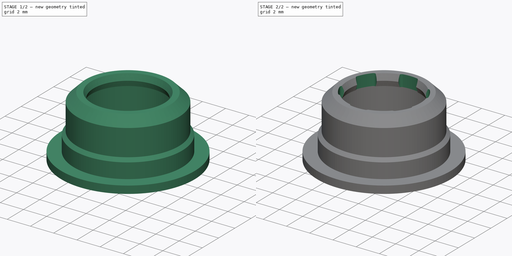
[diagram: build sequence overview — one tinted view per stage of 2, left to right]
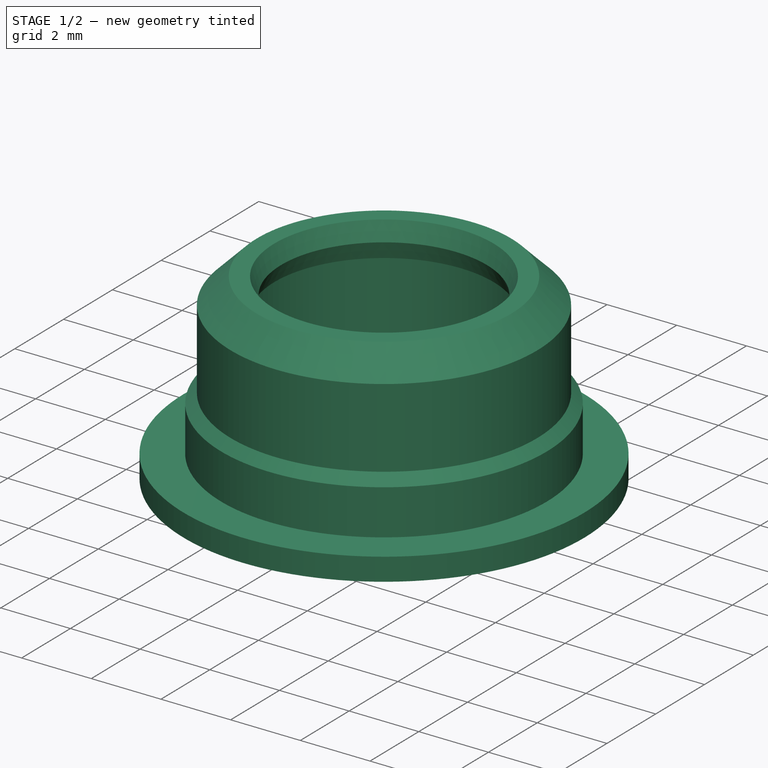
[diagram: stage 1 of 2 — iso view after this stage's code; geometry added in this stage tinted green]
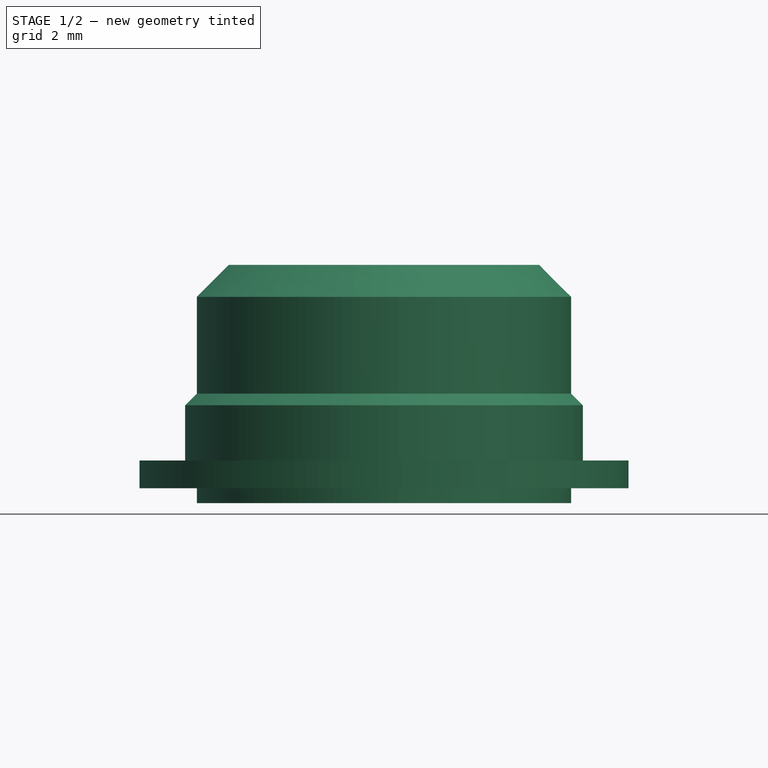
[diagram: stage 1 of 2 — front view after this stage's code; geometry added in this stage tinted green]
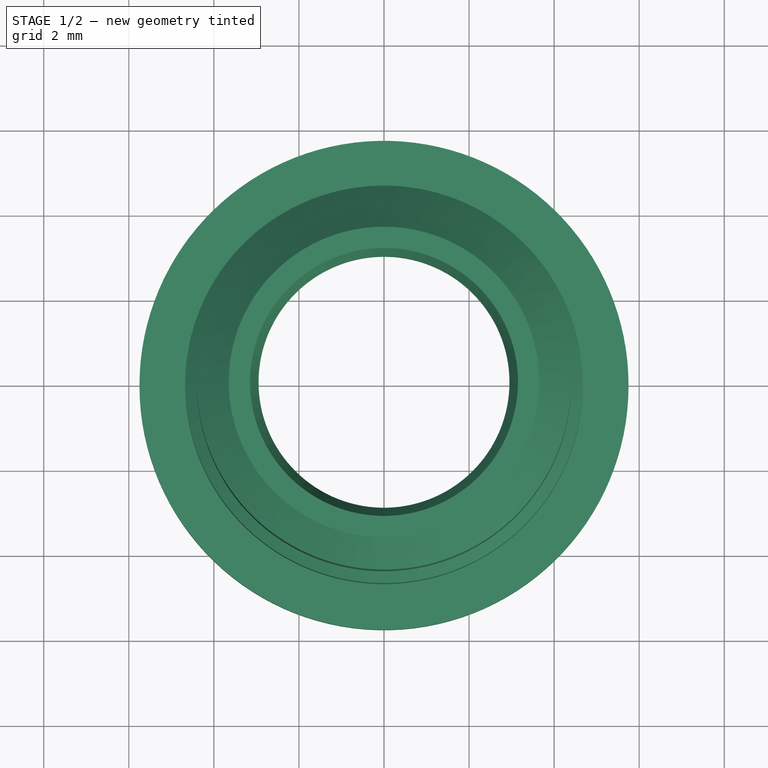
[diagram: stage 1 of 2 — top view after this stage's code; geometry added in this stage tinted green]
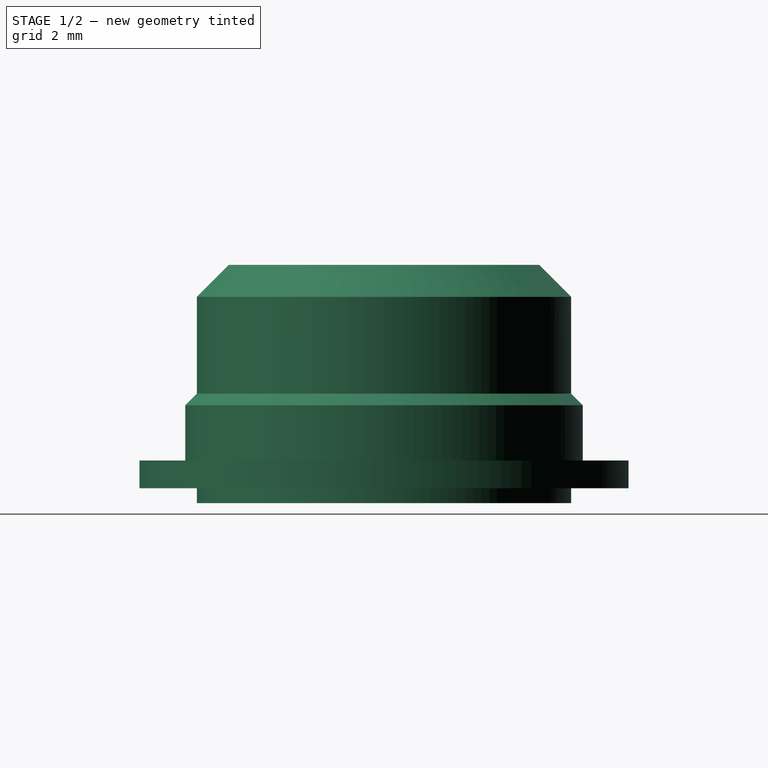
[diagram: stage 1 of 2 — right view after this stage's code; geometry added in this stage tinted green]
FCSTD DOCUMENT  (FreeCAD 0.21R33668 +26 (Git))
Label: PLASTIC-BUSHING-POT_2_deg_edges
License: All rights reserved
LicenseURL: http://en.wikipedia.org/wiki/All_rights_reserved
objects: TechDraw::DrawViewDimension×23, Sketcher::SketchObject×3, PartDesign::Body×2, TechDraw::DrawViewPart×2, PartDesign::Revolution×1, TechDraw::DrawSVGTemplate×1, PartDesign::FeatureBase×1, PartDesign::Pocket×1, PartDesign::PolarPattern×1, TechDraw::DrawComplexSection×1, TechDraw::DrawViewAnnotation×1, TechDraw::DrawViewImage×1, TechDraw::DrawPage×1
note: 52 computed .brp shape members not serialized (recipe doc carries the construction recipe); baked Part::Feature solids carry a one-line shape summary decoded from their .brp

FEATURE [Sketcher::SketchObject] Sketch
  FullyConstrained = true
  MapMode = 5
  Placement = pos=(0,0,0) rot=(1,0,0;1.5708rad)
  Support = -> [XZ_Plane]
  sketch-geometry (20):
    g0: LineSegment StartX=-3.6 StartY=4.6 StartZ=0 EndX=-3.6 EndY=3.5 EndZ=0
    g1: LineSegment StartX=-3.6 StartY=4.6 StartZ=0 EndX=-3.15 EndY=4.6 EndZ=0
    g2: LineSegment StartX=-5.75 StartY=1 StartZ=0 EndX=-4.675 EndY=1 EndZ=0
    g3: LineSegment StartX=-3.15 StartY=5.6 StartZ=0 EndX=-3.65 EndY=5.6 EndZ=0
    g4: LineSegment StartX=-3.65 StartY=5.6 StartZ=0 EndX=-4.4 EndY=4.85 EndZ=0
    g5: LineSegment StartX=-3.825 StartY=0 StartZ=0 EndX=-4.4 EndY=0 EndZ=0
    g6: LineSegment StartX=-5.75 StartY=0.35 StartZ=0 EndX=-4.4 EndY=0.35 EndZ=0
    g7: LineSegment StartX=-4.4 StartY=0 StartZ=0 EndX=-4.4 EndY=0.35 EndZ=0
    g8: LineSegment StartX=-5.75 StartY=1 StartZ=0 EndX=-5.75 EndY=0.35 EndZ=0
    g9: LineSegment StartX=-4.675 StartY=1 StartZ=0 EndX=-4.675 EndY=2.3 EndZ=0
    g10: LineSegment StartX=-4.4 StartY=2.575 StartZ=0 EndX=-4.4 EndY=4.85 EndZ=0
    g11: LineSegment StartX=-3.15 StartY=5.6 StartZ=0 EndX=-2.95 EndY=5.1 EndZ=0
    g12: LineSegment StartX=-2.95 StartY=5.1 StartZ=0 EndX=-3.15 EndY=4.6 EndZ=0
    g13: LineSegment StartX=-3.825 StartY=0 StartZ=0 EndX=-3.325 EndY=0.5 EndZ=0
    g14: LineSegment StartX=-3.325 StartY=0.5 StartZ=0 EndX=-3.6 EndY=1 EndZ=0
    g15: LineSegment StartX=-3.6 StartY=3.5 StartZ=0 EndX=-3.3 EndY=3 EndZ=0
    g16: LineSegment StartX=-3.3 StartY=3 StartZ=0 EndX=-3.6 EndY=2.5 EndZ=0
    g17: LineSegment StartX=-3.6 StartY=2.5 StartZ=0 EndX=-3.6 EndY=1 EndZ=0
    g18: LineSegment StartX=-4.675 StartY=2.3 StartZ=0 EndX=-4.4 EndY=2.575 EndZ=0
    g19: LineSegment StartX=-3.6 StartY=3.5 StartZ=0 EndX=-3.6 EndY=2.5 EndZ=0
  constraints (64):
    c: DistanceY(g5,g0) = 4.6
    c: Coincident(g1,g0)
    c: Horizontal(g1)
    c: DistanceY(g1,g3) = 1
    c: Horizontal(g2)
    c: Coincident(g9,g2)
    c: Horizontal(g3)
    c: Coincident(g4,g3)
    c: Coincident(g4,g10)
    c: PointOnObject(g5,g-1)
    c: DistanceX(g2,g-1) = 4.675
    c: Horizontal(g5)
    c: Horizontal(g6)
    c: Coincident(g7,g5)
    c: Coincident(g7,g6)
    c: Vertical(g7)
    c: DistanceX(g2,g-1) = 5.75
    c: Coincident(g8,g2)
    c: Coincident(g8,g6)
    c: Vertical(g8)
    c: DistanceY(g7,g7) = 0.35
    c: DistanceY(g5,g2) = 1
    c: DistanceX(g5,g-1) = 4.4
    c: Angle(g4,g3) = 2.35619
    c: DistanceX(g0,g-1) = 3.6
    c: Vertical(g9)
    c: Vertical(g10)
    c: DistanceY(g9,g9) = 1.3
    c: DistanceX(g4,g3) = 0.75
    c: DistanceY(g5,g3) = 5.6
    c: Coincident(g12,g1)
    c: DistanceX(g3,g3) = 0.5
    c: Coincident(g11,g3)
    c: Coincident(g12,g11)
    c: Equal(g11,g12)
    c: DistanceX(g11,g-1) = 2.95
    c: Vertical(g1,g3)
    c: Vertical(g0)
    c: Coincident(g13,g5)
    c: Coincident(g17,g14)
    c: DistanceX(g13,g-1) = 3.325
    c: Coincident(g14,g13)
    c: DistanceY(g5,g17) = 1
    c: Angle(g-1,g13) = 0.785398
    c: DistanceY(g5,g13) = 0.5
    c: Equal(g15,g16)
    c: Coincident(g15,g16)
    c: DistanceX(g15,g-1) = 3.3
    c: DistanceY(g16,g15) = 1
    c: DistanceY(g-1,g15) = 3
    c: Coincident(g0,g15)
    c: Coincident(g17,g16)
    c: Vertical(g0,g16)
    c: Vertical(g17)
    c: DistanceY(g0,g0) = 1.1
    c: DistanceY(g8,g8) = 0.65
    c: DistanceX(g4,g0) = 0.8
    c: Coincident(g18,g9)
    c: Coincident(g10,g18)
    c: Angle(g9,g18) = 2.35619
    c: DistanceX(g10,g-1) = 4.4
    c: DistanceY(g9,g10) = 0.275
    c: Coincident(g19,g0)
    c: Coincident(g19,g16)
FEATURE [PartDesign::Revolution] Revolution
  Angle = 360
  Axis = (0,-2e-16,1)
  Base = (0,0,0)
  Placement = pos=(0,0,0) rot=(1,0,0;1.5708rad)
  Profile = -> Sketch
  ReferenceAxis = -> Sketch [V_Axis]
FEATURE [Sketcher::SketchObject] Sketch001
  FullyConstrained = true
  MapMode = 5
  Support = -> [XY_Plane001]
  sketch-geometry (7):
    g0: LineSegment StartX=1e-16 StartY=0 StartZ=0 EndX=-0.776457 EndY=2.89778 EndZ=0
    g1: LineSegment StartX=0.776457 StartY=2.89778 StartZ=0 EndX=0 EndY=0 EndZ=0
    g2: ArcOfCircle CenterX=1e-16 CenterY=0 CenterZ=0 NormalX=0 NormalY=0 NormalZ=1 AngleXU=0 Radius=3.25 StartAngle=1.38895 EndAngle=1.75264
    g3: ArcOfCircle CenterX=-0.544263 CenterY=2.95999 CenterZ=0 NormalX=0 NormalY=0 NormalZ=1 AngleXU=0 Radius=0.240385 StartAngle=1.75264 EndAngle=3.40339
    g4: ArcOfCircle CenterX=0.544263 CenterY=2.95999 CenterZ=0 NormalX=0 NormalY=0 NormalZ=1 AngleXU=0 Radius=0.240385 StartAngle=6.02139 EndAngle=7.67214
    g5: LineSegment StartX=-0.776457 StartY=2.89778 StartZ=0 EndX=0.776457 EndY=2.89778 EndZ=0
    g6: LineSegment StartX=-0.587735 StartY=3.19641 StartZ=0 EndX=0.587735 EndY=3.19641 EndZ=0
  constraints (16):
    c: Coincident(g-1,g0)
    c: Coincident(g1,g0)
    c: Coincident(g2,g0)
    c: Tangent(g0,g3) = 1.5708
    c: Tangent(g2,g3) = -1.5708
    c: Tangent(g2,g4) = -1.5708
    c: Tangent(g1,g4) = 1.5708
    c: Coincident(g5,g0)
    c: Coincident(g5,g1)
    c: Horizontal(g5)
    c: Coincident(g6,g2)
    c: Coincident(g6,g2)
    c: Horizontal(g6)
    c: Diameter(g2) = 6.5
    c: Angle(g1,g0) = 0.523599
    c: Distance(g0) = 3
FEATURE [TechDraw::DrawSVGTemplate] Template
  EditableTexts = COLOR=Black; CreationDate=2024/02/16; E.G.APPROVED=APPROVED; FC-Scale=10:1; FC-Title=PLASTIC - BUSHING - POT; IntechStudioLtd.=Intech Studio Ltd.; MATERIAL=POM; REV=03; STANDARD=+/- 0,1
  Height = 297
  Orientation = 1
  Template = <userpath>/Documents/grid-hardware/Manufacturing/FreeCAD_technical_drawing_template/A3_LandscapeTD_MODIFIED.svg
  Width = 420
FEATURE [Sketcher::SketchObject] Sketch002
  FullyConstrained = true
  MapMode = 5
  Placement = pos=(0,0,0) rot=(1,0,0;1.5708rad)
  Support = -> [XZ_Plane]
  sketch-geometry (1):
    g0: LineSegment StartX=0 StartY=-1 StartZ=0 EndX=0 EndY=6 EndZ=0
  constraints (4):
    c: PointOnObject(g0,g-2)
    c: PointOnObject(g0,g-2)
    c: DistanceY(g0,g0) = 7
    c: DistanceY(g0,g-1) = 1
FEATURE [PartDesign::Body] Body  label="PLASTIC-BUSHING-POT"
  Group = -> [Sketch,Revolution,Sketch002]
  Origin = -> Origin
  Tip = -> Revolution
FEATURE [PartDesign::FeatureBase] Clone
  BaseFeature = -> Body
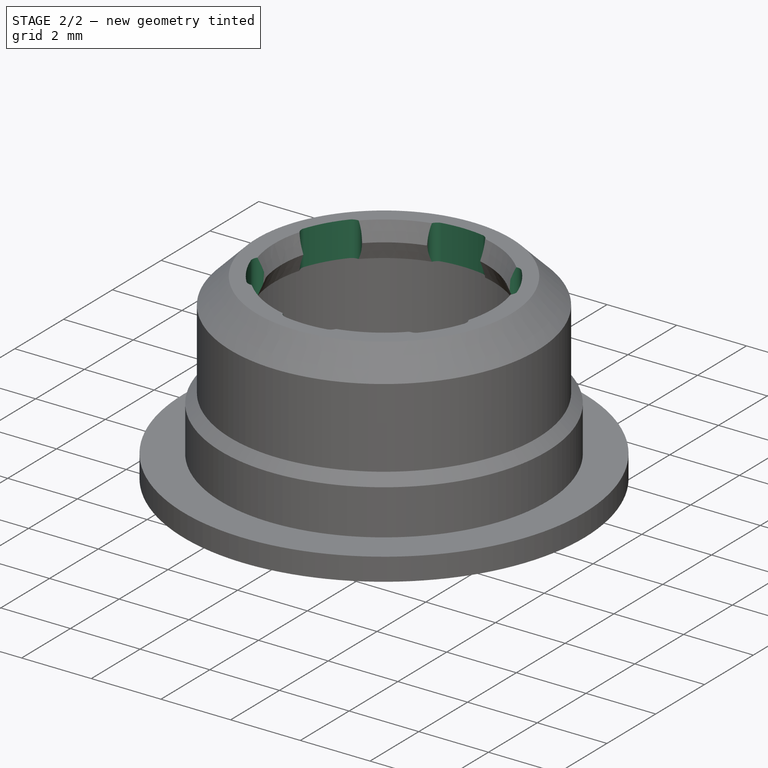
[diagram: stage 2 of 2 — iso view after this stage's code; geometry added in this stage tinted green]
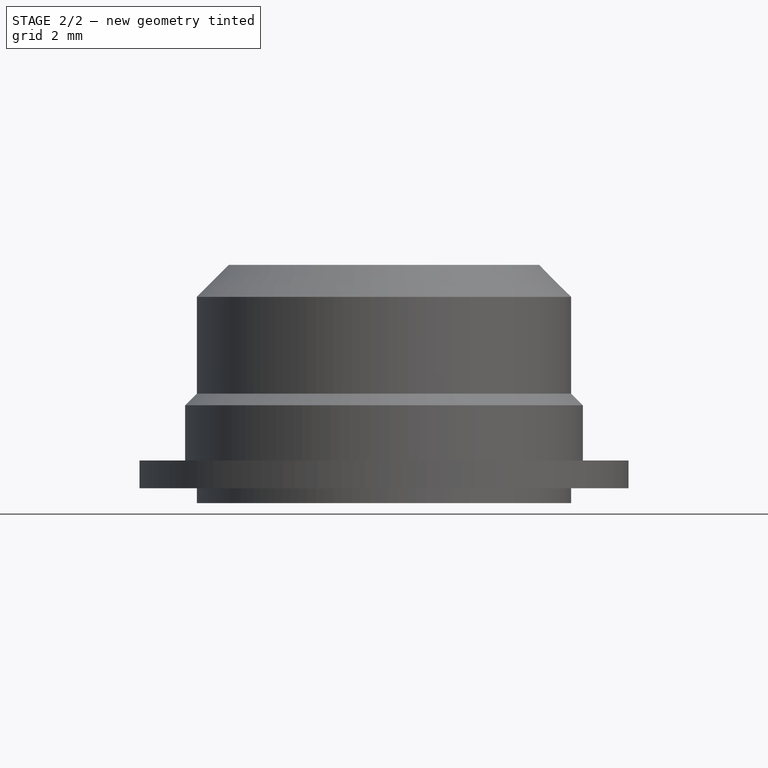
[diagram: stage 2 of 2 — front view after this stage's code; geometry added in this stage tinted green]
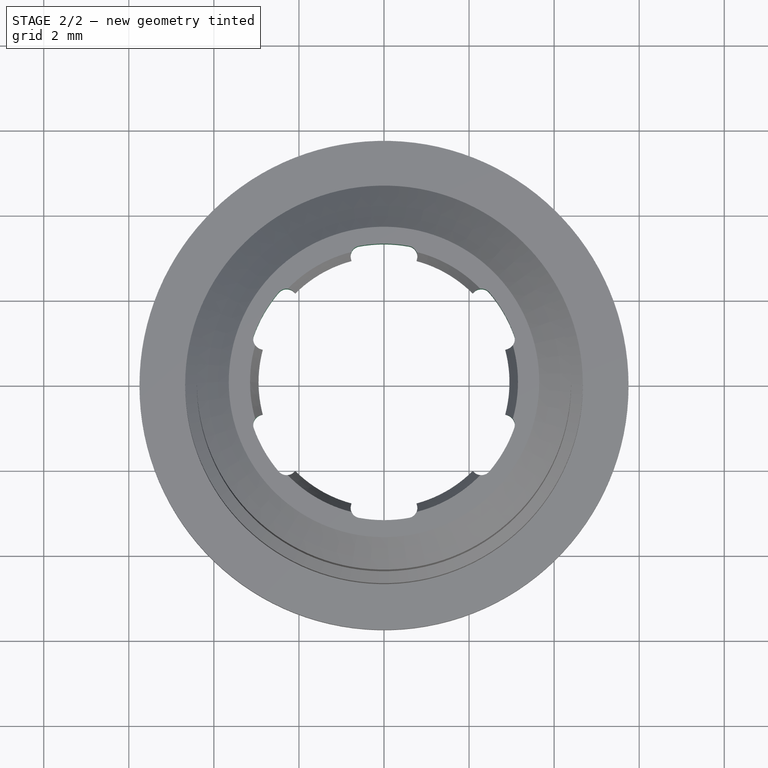
[diagram: stage 2 of 2 — top view after this stage's code; geometry added in this stage tinted green]
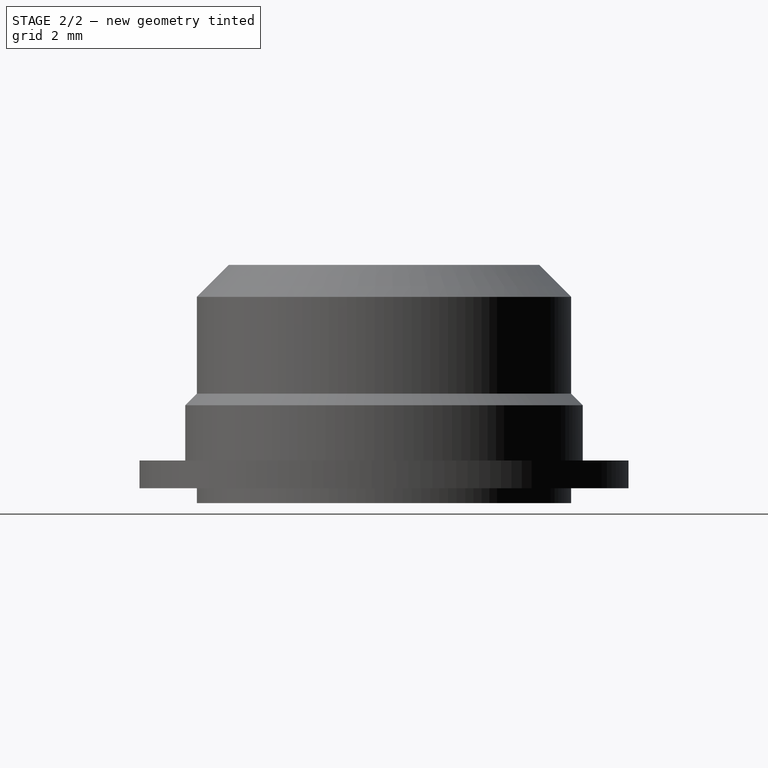
[diagram: stage 2 of 2 — right view after this stage's code; geometry added in this stage tinted green]
FEATURE [PartDesign::Pocket] Pocket
  BaseFeature = -> Clone
  Direction = (0,0,-1)
  Length = 5
  Length2 = 5
  Midplane = true
  Profile = -> Sketch001
  ReferenceAxis = -> Sketch001 [N_Axis]
  Type = 1
FEATURE [PartDesign::PolarPattern] PolarPattern
  Angle = 360
  Axis = -> Sketch001 [N_Axis]
  BaseFeature = -> Pocket
  Occurrences = 6
  Originals = -> [Pocket]
FEATURE [PartDesign::Body] Body001  label="PLASTIC-BUSHING-POT_Printed"
  BaseFeature = -> Body
  Group = -> [Clone,Sketch001,Pocket,PolarPattern]
  Origin = -> Origin001
  Tip = -> PolarPattern
FEATURE [TechDraw::DrawViewPart] View
  CoarseView = false
  Direction = (0,-1,0)
  Focus = 100
  HardHidden = false
  IsoCount = 0
  IsoHidden = false
  IsoVisible = true
  LockPosition = false
  Perspective = false
  Rotation = 0
  Scale = 10
  ScaleType = 2
  ScrubCount = 0
  SeamHidden = false
  SeamVisible = true
  SmoothHidden = false
  SmoothVisible = true
  Source = -> [Body]
  X = 104.919
  XDirection = (1,0,1e-06)
  Y = 220.471
FEATURE [TechDraw::DrawComplexSection] ComplexSection  label="Section A - A"
  BaseView = -> View
  CoarseView = false
  CutSurfaceDisplay = 2
  CuttingToolWireObject = -> Sketch002
  Direction = (-1,0,-1e-06)
  FileGeomPattern = C:/Program Files/FreeCAD 0.21/data/Mod/TechDraw/PAT/FCPAT.pat
  FileHatchPattern = C:/Program Files/FreeCAD 0.21/data/Mod/TechDraw/Patterns/simple.svg
  Focus = 100
  FuseBeforeCut = false
  HardHidden = false
  HatchOffset = (0,0,0)
  HatchRotation = 0
  HatchScale = 1
  IsoCount = 0
  IsoHidden = false
  IsoVisible = true
  LockPosition = false
  NameGeomPattern = Gyémánt bevonatú
  Perspective = false
  ProjectionStrategy = 0
  Rotation = -90
  Scale = 10
  ScaleType = 2
  ScrubCount = 0
  SeamHidden = false
  SeamVisible = true
  SectionDirection = 4
  SectionNormal = (-1,0,-1e-06)
  SectionOrigin = (0,0,0)
  SectionSymbol = A
  SmoothHidden = false
  SmoothVisible = true
  Source = -> [Body]
  TrimAfterCut = false
  X = 281.503
  XDirection = (1e-06,0,-1)
  Y = 217.69
FEATURE [TechDraw::DrawViewPart] View001
  CoarseView = false
  Direction = (-1e-06,0,1)
  Focus = 100
  HardHidden = false
  IsoCount = 0
  IsoHidden = false
  IsoVisible = true
  LockPosition = false
  Perspective = false
  Rotation = 0
  Scale = 10
  ScaleType = 2
  ScrubCount = 0
  SeamHidden = false
  SeamVisible = true
  SmoothHidden = false
  SmoothVisible = true
  Source = -> [Body]
  X = 106.159
  XDirection = (1,0,1e-06)
  Y = 97.3006
FEATURE [TechDraw::DrawViewDimension] Dimension002
  AngleOverride = false
  Arbitrary = false
  ArbitraryTolerances = false
  EqualTolerance = true
  ExtensionAngle = 0
  FormatSpec = ⌀%.2w
  FormatSpecOverTolerance = %+.2w
  FormatSpecUnderTolerance = %+.2w
  Inverted = false
  LineAngle = 0
  LockPosition = false
  MeasureType = 1
  OverTolerance = 0
  References2D = -> [View001]
  Rotation = 0
  ScaleType = 0
  TheoreticalExact = false
  Type = 5
  UnderTolerance = 0
  X = 73.3272
  Y = 38.6561
FEATURE [TechDraw::DrawViewDimension] Dimension006
  AngleOverride = false
  Arbitrary = false
  ArbitraryTolerances = false
  EqualTolerance = true
  ExtensionAngle = 0
  FormatSpec = ⌀%.2w
  FormatSpecOverTolerance = %+.2w
  FormatSpecUnderTolerance = %+.2w
  Inverted = false
  LineAngle = 0
  LockPosition = false
  MeasureType = 1
  OverTolerance = 0
  References2D = -> [View]
  Rotation = 0
  ScaleType = 0
  TheoreticalExact = false
  Type = 0
  UnderTolerance = 0
  X = -0.516568
  Y = -42.4063
FEATURE [TechDraw::DrawViewDimension] Dimension007
  AngleOverride = false
  Arbitrary = false
  ArbitraryTolerances = false
  EqualTolerance = true
  ExtensionAngle = 0
  FormatSpec = %.2w×45°
  FormatSpecOverTolerance = %+.2w
  FormatSpecUnderTolerance = %+.2w
  Inverted = false
  LineAngle = 0
  LockPosition = false
  MeasureType = 1
  OverTolerance = 0
  References2D = -> [ComplexSection]
  Rotation = 0
  ScaleType = 0
  TheoreticalExact = false
  Type = 2
  UnderTolerance = 0
  X = 64.4303
  Y = 6.24021
FEATURE [TechDraw::DrawViewDimension] Dimension016
  AngleOverride = false
  Arbitrary = false
  ArbitraryTolerances = false
  EqualTolerance = true
  ExtensionAngle = 0
  FormatSpec = ⌀%.2w
  FormatSpecOverTolerance = %+.2w
  FormatSpecUnderTolerance = %+.2w
  Inverted = false
  LineAngle = 0
  LockPosition = false
  MeasureType = 1
  OverTolerance = 0
  References2D = -> [View001]
  Rotation = 0
  ScaleType = 0
  TheoreticalExact = false
  Type = 5
  UnderTolerance = 0
  X = 78.5171
  Y = 25.4885
FEATURE [TechDraw::DrawViewAnnotation] Annotation
  Font = osifont
  LineSpace = 100
  LockPosition = false
  MaxWidth = -1
  Rotation = 0
  ScaleType = 0
  Text = Section A-A
  TextSize = 4
  TextStyle = 0
  X = 282.253
  Y = 148.402
FEATURE [TechDraw::DrawViewDimension] Dimension020
  AngleOverride = false
  Arbitrary = false
  ArbitraryTolerances = false
  EqualTolerance = true
  ExtensionAngle = 0
  FormatSpec = ⌀%.2w
  FormatSpecOverTolerance = %+.2w
  FormatSpecUnderTolerance = %+.2w
  Inverted = false
  LineAngle = 0
  LockPosition = false
  MeasureType = 1
  OverTolerance = 0
  References2D = -> [ComplexSection]
  Rotation = 0
  ScaleType = 0
  TheoreticalExact = false
  Type = 1
  UnderTolerance = 0
  X = -1.31606
  Y = 49.7679
FEATURE [TechDraw::DrawViewDimension] Dimension021
  AngleOverride = false
  Arbitrary = false
  ArbitraryTolerances = false
  EqualTolerance = true
  ExtensionAngle = 0
  FormatSpec = ⌀%.2w
  FormatSpecOverTolerance = %+.2w
  FormatSpecUnderTolerance = %+.2w
  Inverted = false
  LineAngle = 0
  LockPosition = false
  MeasureType = 1
  OverTolerance = 0
  References2D = -> [ComplexSection]
  Rotation = 0
  ScaleType = 0
  TheoreticalExact = false
  Type = 1
  UnderTolerance = 0
  X = -0.276432
  Y = -56.4229
FEATURE [TechDraw::DrawViewDimension] Dimension023
  AngleOverride = false
  Arbitrary = false
  ArbitraryTolerances = false
  EqualTolerance = true
  ExtensionAngle = 0
  FormatSpec = %.2w×45°
  FormatSpecOverTolerance = %+.2w
  FormatSpecUnderTolerance = %+.2w
  Inverted = false
  LineAngle = 0
  LockPosition = false
  MeasureType = 1
  OverTolerance = 0
  References2D = -> [ComplexSection]
  Rotation = 0
  ScaleType = 0
  TheoreticalExact = false
  Type = 2
  UnderTolerance = 0
  X = 65.124
  Y = -37.7849
FEATURE [TechDraw::DrawViewDimension] Dimension026
  AngleOverride = false
  Arbitrary = false
  ArbitraryTolerances = false
  EqualTolerance = true
  ExtensionAngle = 0
  FormatSpec = ⌀%.2w
  FormatSpecOverTolerance = %+.2w
  FormatSpecUnderTolerance = %+.2w
  Inverted = false
  LineAngle = 0
  LockPosition = false
  MeasureType = 1
  OverTolerance = 0
  References2D = -> [ComplexSection]
  Rotation = 0
  ScaleType = 0
  TheoreticalExact = false
  Type = 1
  UnderTolerance = 0
  X = -0.581342
  Y = -42.3351
FEATURE [TechDraw::DrawViewDimension] Dimension027
  AngleOverride = false
  Arbitrary = false
  ArbitraryTolerances = false
  EqualTolerance = true
  ExtensionAngle = 0
  FormatSpec = ⌀%.2w
  FormatSpecOverTolerance = %+.2w
  FormatSpecUnderTolerance = %+.2w
  Inverted = false
  LineAngle = 0
  LockPosition = false
  MeasureType = 1
  OverTolerance = 0
  References2D = -> [ComplexSection]
  Rotation = 0
  ScaleType = 0
  TheoreticalExact = false
  Type = 1
  UnderTolerance = 0
  X = -1.21128
  Y = 56.956
FEATURE [TechDraw::DrawViewDimension] Dimension028
  AngleOverride = false
  Arbitrary = false
  ArbitraryTolerances = false
  EqualTolerance = true
  ExtensionAngle = 0
  FormatSpec = ⌀%.2w
  FormatSpecOverTolerance = %+.2w
  FormatSpecUnderTolerance = %+.2w
  Inverted = false
  LineAngle = 0
  LockPosition = false
  MeasureType = 1
  OverTolerance = 0
  References2D = -> [ComplexSection]
  Rotation = 0
  ScaleType = 0
  TheoreticalExact = false
  Type = 1
  UnderTolerance = 0
  X = -1.43633
  Y = 42.1012
FEATURE [TechDraw::DrawViewDimension] Dimension029
  AngleOverride = false
  Arbitrary = false
  ArbitraryTolerances = false
  EqualTolerance = true
  ExtensionAngle = 0
  FormatSpec = %.2w
  FormatSpecOverTolerance = %+.2w
  FormatSpecUnderTolerance = %+.2w
  Inverted = false
  LineAngle = 0
  LockPosition = false
  MeasureType = 1
  OverTolerance = 0
  References2D = -> [ComplexSection]
  Rotation = 0
  ScaleType = 0
  TheoreticalExact = false
  Type = 2
  UnderTolerance = 0
  X = -77.3726
  Y = -3.98069
FEATURE [TechDraw::DrawViewDimension] Dimension030
  AngleOverride = false
  Arbitrary = false
  ArbitraryTolerances = false
  EqualTolerance = true
  ExtensionAngle = 0
  FormatSpec = %.2w
  FormatSpecOverTolerance = %+.2w
  FormatSpecUnderTolerance = %+.2w
  Inverted = false
  LineAngle = 0
  LockPosition = false
  MeasureType = 1
  OverTolerance = 0
  References2D = -> [ComplexSection]
  Rotation = 0
  ScaleType = 0
  TheoreticalExact = false
  Type = 2
  UnderTolerance = 0
  X = -68.74
  Y = -11.4007
FEATURE [TechDraw::DrawViewDimension] Dimension031
  AngleOverride = false
  Arbitrary = false
  ArbitraryTolerances = false
  EqualTolerance = true
  ExtensionAngle = 0
  FormatSpec = %.2w
  FormatSpecOverTolerance = %+.2w
  FormatSpecUnderTolerance = %+.2w
  Inverted = false
  LineAngle = 0
  LockPosition = false
  MeasureType = 1
  OverTolerance = 0
  References2D = -> [ComplexSection]
  Rotation = 0
  ScaleType = 0
  TheoreticalExact = false
  Type = 2
  UnderTolerance = 0
  X = 25.0275
  Y = 12.3082
FEATURE [TechDraw::DrawViewDimension] Dimension032
  AngleOverride = false
  Arbitrary = false
  ArbitraryTolerances = false
  EqualTolerance = true
  ExtensionAngle = 0
  FormatSpec = %.2w
  FormatSpecOverTolerance = %+.2w
  FormatSpecUnderTolerance = %+.2w
  Inverted = false
  LineAngle = 0
  LockPosition = false
  MeasureType = 1
  OverTolerance = 0
  References2D = -> [ComplexSection]
  Rotation = 0
  ScaleType = 0
  TheoreticalExact = false
  Type = 2
  UnderTolerance = 0
  X = -20.675
  Y = -10.8485
FEATURE [TechDraw::DrawViewDimension] Dimension033
  AngleOverride = false
  Arbitrary = false
  ArbitraryTolerances = false
  EqualTolerance = true
  ExtensionAngle = 0
  FormatSpec = %.2w
  FormatSpecOverTolerance = %+.2w
  FormatSpecUnderTolerance = %+.2w
  Inverted = false
  LineAngle = 0
  LockPosition = false
  MeasureType = 1
  OverTolerance = 0
  References2D = -> [ComplexSection]
  Rotation = 0
  ScaleType = 0
  TheoreticalExact = false
  Type = 2
  UnderTolerance = 0
  X = -24.3041
  Y = 17.2508
FEATURE [TechDraw::DrawViewDimension] Dimension035
  AngleOverride = false
  Arbitrary = false
  ArbitraryTolerances = false
  EqualTolerance = true
  ExtensionAngle = 0
  FormatSpec = %.2w
  FormatSpecOverTolerance = %+.2w
  FormatSpecUnderTolerance = %+.2w
  Inverted = false
  LineAngle = 0
  LockPosition = false
  MeasureType = 1
  OverTolerance = 0
  References2D = -> [View]
  Rotation = 0
  ScaleType = 0
  TheoreticalExact = false
  Type = 2
  UnderTolerance = 0
  X = 75.1574
  Y = -13.8278
FEATURE [TechDraw::DrawViewDimension] Dimension036
  AngleOverride = false
  Arbitrary = false
  ArbitraryTolerances = false
  EqualTolerance = true
  ExtensionAngle = 0
  FormatSpec = %.2w
  FormatSpecOverTolerance = %+.2w
  FormatSpecUnderTolerance = %+.2w
  Inverted = false
  LineAngle = 0
  LockPosition = false
  MeasureType = 1
  OverTolerance = 0
  References2D = -> [View]
  Rotation = 0
  ScaleType = 0
  TheoreticalExact = false
  Type = 2
  UnderTolerance = 0
  X = 65.6556
  Y = -18.5068
FEATURE [TechDraw::DrawViewDimension] Dimension037
  AngleOverride = false
  Arbitrary = false
  ArbitraryTolerances = false
  EqualTolerance = true
  ExtensionAngle = 0
  FormatSpec = ⌀%.2w
  FormatSpecOverTolerance = %+.2w
  FormatSpecUnderTolerance = %+.2w
  Inverted = false
  LineAngle = 0
  LockPosition = false
  MeasureType = 1
  OverTolerance = 0
  References2D = -> [ComplexSection]
  Rotation = 0
  ScaleType = 0
  TheoreticalExact = false
  Type = 1
  UnderTolerance = 0
  X = -0.525805
  Y = -49.0071
FEATURE [TechDraw::DrawViewDimension] Dimension039
  AngleOverride = false
  Arbitrary = false
  ArbitraryTolerances = false
  EqualTolerance = true
  ExtensionAngle = 0
  FormatSpec = (%.5w)×45°
  FormatSpecOverTolerance = %+.2w
  FormatSpecUnderTolerance = %+.2w
  Inverted = false
  LineAngle = 0
  LockPosition = false
  MeasureType = 1
  OverTolerance = 0
  References2D = -> [View]
  Rotation = 0
  ScaleType = 0
  TheoreticalExact = false
  Type = 2
  UnderTolerance = 0
  X = 66.064
  Y = 20.1318
FEATURE [TechDraw::DrawViewDimension] Dimension
  AngleOverride = false
  Arbitrary = false
  ArbitraryTolerances = false
  EqualTolerance = true
  ExtensionAngle = 0
  FormatSpec = %.2w
  FormatSpecOverTolerance = %+.2w
  FormatSpecUnderTolerance = %+.2w
  Inverted = false
  LineAngle = 0
  LockPosition = false
  MeasureType = 1
  OverTolerance = 0
  References2D = -> [View]
  Rotation = 0
  ScaleType = 0
  TheoreticalExact = false
  Type = 2
  UnderTolerance = 0
  X = -13.4554
  Y = 33.3242
FEATURE [TechDraw::DrawViewDimension] Dimension040
  AngleOverride = false
  Arbitrary = false
  ArbitraryTolerances = false
  EqualTolerance = true
  ExtensionAngle = 0
  FormatSpec = (%.2w)
  FormatSpecOverTolerance = %+.2w
  FormatSpecUnderTolerance = %+.2w
  Inverted = false
  LineAngle = 0
  LockPosition = false
  MeasureType = 1
  OverTolerance = 0
  References2D = -> [View]
  Rotation = 0
  ScaleType = 0
  TheoreticalExact = false
  Type = 2
  UnderTolerance = 0
  X = -85.3041
  Y = -2.24589
FEATURE [TechDraw::DrawViewImage] ActiveView
  Height = 100
  ImageFile = <userpath>/AppData/Local/Temp/FreeCAD/Cache/FreeCAD_Doc_08b8b2a3-d6cd-4e8a-b76b-68cd6ee703e2_c6fc74_12992/Pag9ED6.tmp.png
  LockPosition = false
  Rotation = 0
  ScaleType = 2
  Width = 100
  X = 355.129
  Y = 110.354
FEATURE [TechDraw::DrawViewDimension] Dimension041
  AngleOverride = false
  Arbitrary = false
  ArbitraryTolerances = false
  EqualTolerance = true
  ExtensionAngle = 0
  FormatSpec = %.2w
  FormatSpecOverTolerance = %+.2w
  FormatSpecUnderTolerance = %+.2w
  Inverted = false
  LineAngle = 0
  LockPosition = false
  MeasureType = 1
  OverTolerance = 0
  References2D = -> [ComplexSection]
  Rotation = 0
  ScaleType = 0
  TheoreticalExact = false
  Type = 1
  UnderTolerance = 0
  X = 2.92304
  Y = -28.5999
FEATURE [TechDraw::DrawViewDimension] Dimension042
  AngleOverride = false
  Arbitrary = false
  ArbitraryTolerances = false
  EqualTolerance = true
  ExtensionAngle = 0
  FormatSpec = %.2w
  FormatSpecOverTolerance = %+.2w
  FormatSpecUnderTolerance = %+.2w
  Inverted = false
  LineAngle = 0
  LockPosition = false
  MeasureType = 1
  OverTolerance = 0
  References2D = -> [ComplexSection]
  Rotation = 0
  ScaleType = 0
  TheoreticalExact = false
  Type = 2
  UnderTolerance = 0
  X = -89.326
  Y = -5.20255
FEATURE [TechDraw::DrawPage] Page001  label="PLASTIC-BUSHING-POT_Drawing"
  KeepUpdated = true
  NextBalloonIndex = 5
  ProjectionType = 0
  Template = -> Template
  Views = -> [View,ComplexSection,View001,Dimension002,Dimension006,Dimension007,Dimension016,Annotation,Dimension020,Dimension021,Dimension023,Dimension026,Dimension027,Dimension028,Dimension029,Dimension030,Dimension031,Dimension032,Dimension033,Dimension035,Dimension036,Dimension037,Dimension039,Dimension,Dimension040,ActiveView,Dimension041,Dimension042]
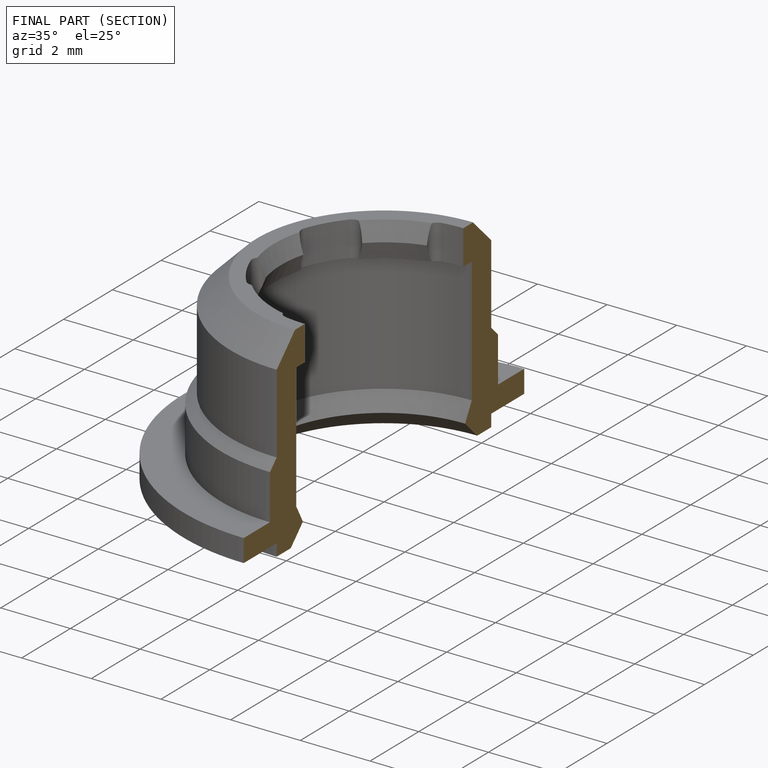
[diagram: finished part — half-section view (interior)]
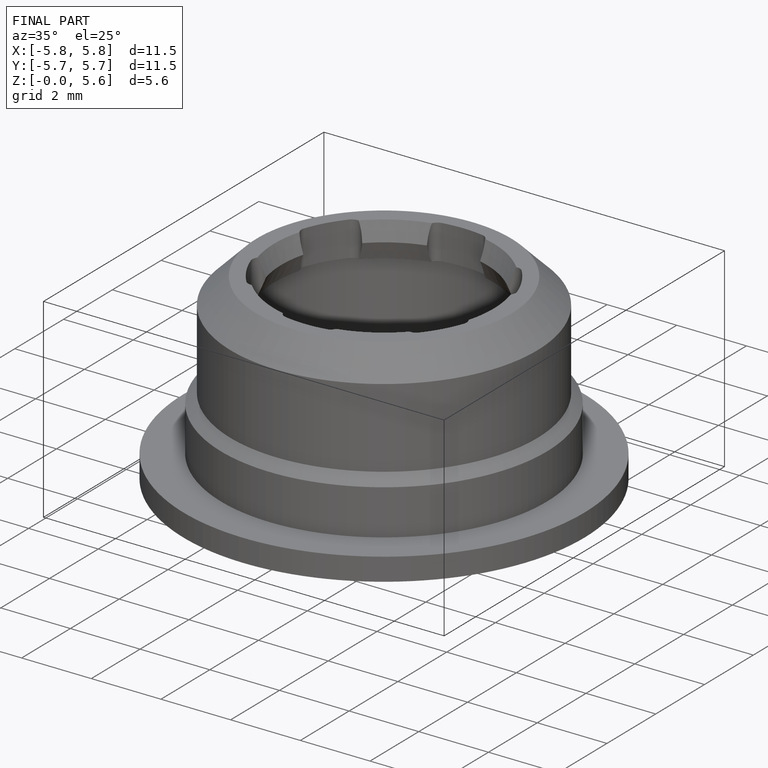
[diagram: finished part — iso view with bounding-box wireframe]
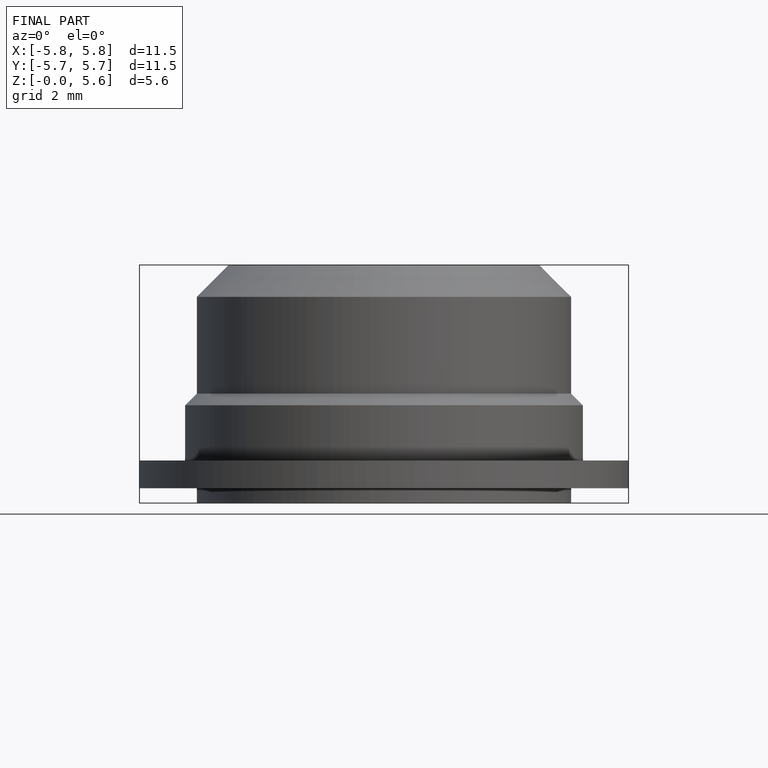
[diagram: finished part — front view with bounding-box wireframe]
